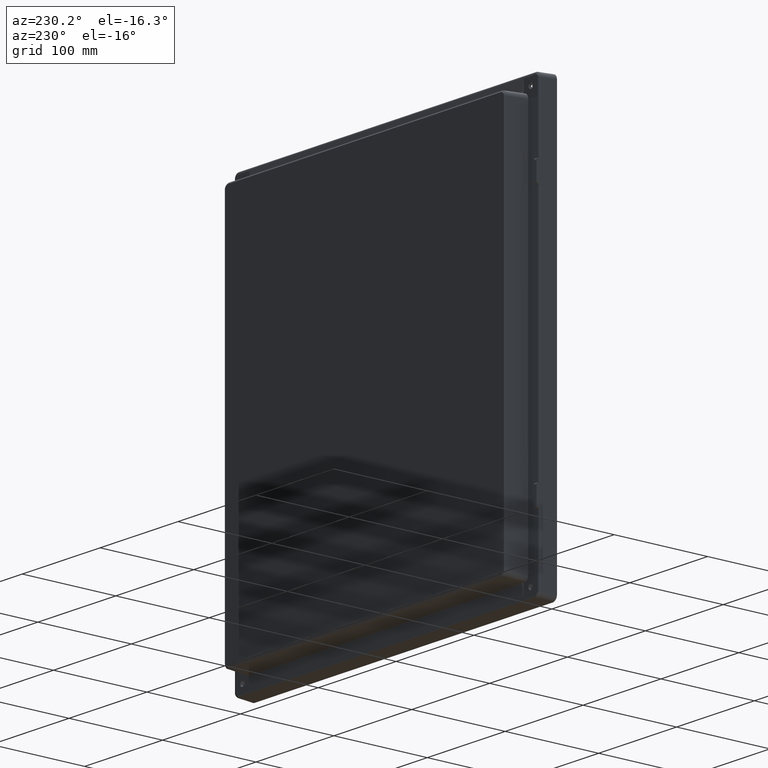
[diagram: clean part render]
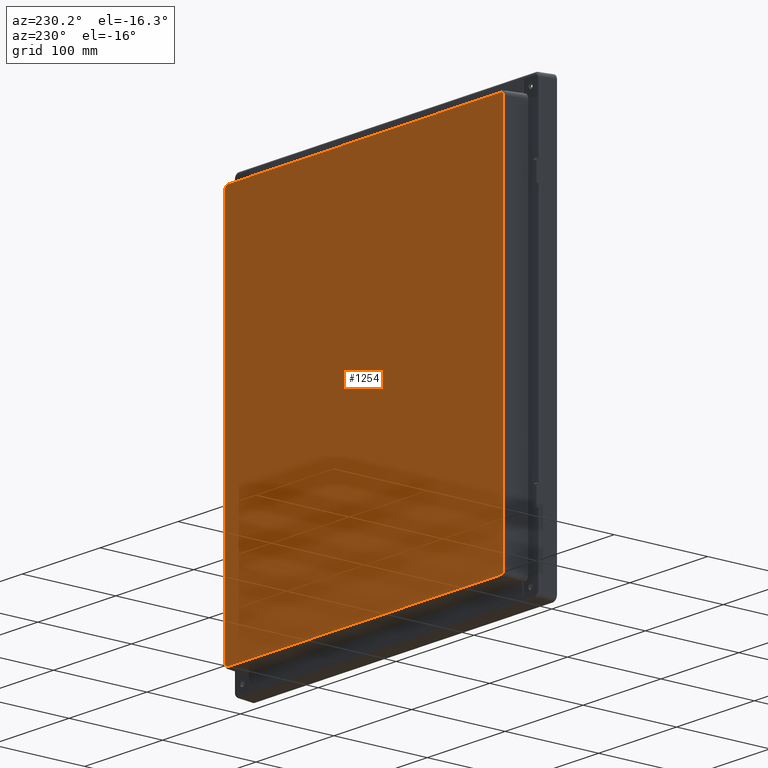
[diagram: same view with one face highlighted and labeled with its STEP entity id]
A machine part, auxiliary view. The second image highlights one B-rep face of the part: STEP entity #1254.
In plain terms, the highlighted planar face has unit normal (0, 1, 0).
Its self-contained STEP definition (entity closure, byte-faithful):
#996 = VECTOR ( 'NONE', #9577, 1000.000000000000000 ) ;
#1254 = ADVANCED_FACE ( 'NONE', ( #7381 ), #26122, .T. ) ;
#1315 = CARTESIAN_POINT ( 'NONE',  ( 179.1330037502764000, 34.00000000000000000, 202.8041769975908700 ) ) ;
#1467 = VERTEX_POINT ( 'NONE', #1315 ) ;
#1657 = CARTESIAN_POINT ( 'NONE',  ( 177.6569440720461200, 34.00000000000000000, -205.8675752404013200 ) ) ;
#1715 = EDGE_CURVE ( 'NONE', #8702, #29280, #11071, .T. ) ;
#1976 = CARTESIAN_POINT ( 'NONE',  ( 175.3041769975909900, 34.00000000000000000, 206.6330037502763200 ) ) ;
#2034 = ORIENTED_EDGE ( 'NONE', *, *, #3938, .T. ) ;
#2385 = CARTESIAN_POINT ( 'NONE',  ( 178.6431251170168900, 34.00000000000000700, 204.7435897431095100 ) ) ;
#2615 = ORIENTED_EDGE ( 'NONE', *, *, #5556, .T. ) ;
#2761 = ORIENTED_EDGE ( 'NONE', *, *, #8643, .T. ) ;
#3313 = ORIENTED_EDGE ( 'NONE', *, *, #1715, .T. ) ;
#3455 = CARTESIAN_POINT ( 'NONE',  ( -179.1339308130039900, 34.00000000000000000, 203.0548802001824200 ) ) ;
#3585 = LINE ( 'NONE', #21600, #996 ) ;
#3886 = CARTESIAN_POINT ( 'NONE',  ( -179.1330037502763200, 34.00000000000000000, 202.7256730632263400 ) ) ;
#3938 = EDGE_CURVE ( 'NONE', #20240, #1467, #11385, .T. ) ;
#4229 = ORIENTED_EDGE ( 'NONE', *, *, #9356, .T. ) ;
#4333 = CARTESIAN_POINT ( 'NONE',  ( 179.0123885963521100, 33.99999999999999300, -203.7905390636356600 ) ) ;
#4358 = CARTESIAN_POINT ( 'NONE',  ( 176.2905390636747700, 34.00000000000000000, 206.5123885963522200 ) ) ;
#4561 = CARTESIAN_POINT ( 'NONE',  ( 176.5324585220714900, 34.00000000000000700, 206.4382708566651600 ) ) ;
#4761 = CARTESIAN_POINT ( 'NONE',  ( 179.0372547930608100, 34.00000000000001400, 203.7942391106155900 ) ) ;
#5294 = CARTESIAN_POINT ( 'NONE',  ( -177.2418262364443300, 34.00000000000000700, -206.1440281517980100 ) ) ;
#5488 = VECTOR ( 'NONE', #16437, 1000.000000000000000 ) ;
#5556 = EDGE_CURVE ( 'NONE', #12538, #22856, #27057, .T. ) ;
#5605 = CARTESIAN_POINT ( 'NONE',  ( -179.1330037502763200, 34.00000000000000000, 202.8041769975908400 ) ) ;
#5919 = CARTESIAN_POINT ( 'NONE',  ( -178.9382708566774300, 34.00000000000000000, 204.0324585220415900 ) ) ;
#6027 = CARTESIAN_POINT ( 'NONE',  ( 179.1330037502763400, 34.00000000000000000, -202.8041769975908200 ) ) ;
#6076 = CARTESIAN_POINT ( 'NONE',  ( 175.3041769975909900, 34.00000000000000000, 206.6330037502763200 ) ) ;
#6264 = B_SPLINE_CURVE_WITH_KNOTS ( 'NONE', 3,
 ( #5605, #3455, #13177, #22613, #5919, #8393, #24808, #17860, #25116, #20313, #20010, #29835 ),
 .UNSPECIFIED., .F., .F.,
 ( 4, 2, 2, 2, 2, 4 ),
 ( 0.0000000000000000000, 0.1250000000000000000, 0.2500000000000000000, 0.5000000000000000000, 0.7500000000000000000, 1.000000000000000000 ),
 .UNSPECIFIED. ) ;
#6719 = CARTESIAN_POINT ( 'NONE',  ( 179.1339308130040700, 34.00000000000000700, -203.0548802001563900 ) ) ;
#6745 = CARTESIAN_POINT ( 'NONE',  ( 177.2418262364448700, 34.00000000000000000, 206.1440281517860200 ) ) ;
#6951 = CARTESIAN_POINT ( 'NONE',  ( -182.5000000000000000, 34.00000000000000000, 210.0000000000000000 ) ) ;
#7381 = FACE_OUTER_BOUND ( 'NONE', #9203, .T. ) ;
#7394 = VECTOR ( 'NONE', #13081, 1000.000000000000000 ) ;
#7444 = CARTESIAN_POINT ( 'NONE',  ( -179.1330037502763200, 34.00000000000000000, 202.8041769975908400 ) ) ;
#8393 = CARTESIAN_POINT ( 'NONE',  ( -178.6440281517612600, 34.00000000000000700, 204.7418262365042900 ) ) ;
#8470 = CARTESIAN_POINT ( 'NONE',  ( -179.1330037502763700, 34.00000000000000000, -202.8041769975908700 ) ) ;
#8643 = EDGE_CURVE ( 'NONE', #1467, #24751, #3585, .T. ) ;
#8702 = VERTEX_POINT ( 'NONE', #9372 ) ;
#8986 = CARTESIAN_POINT ( 'NONE',  ( 179.1330037502764000, 34.00000000000000000, 202.8041769975908700 ) ) ;
#9203 = EDGE_LOOP ( 'NONE', ( #2615, #4229, #24265, #2034, #2761, #26151, #3313, #20436 ) ) ;
#9356 = EDGE_CURVE ( 'NONE', #22856, #21958, #6264, .T. ) ;
#9372 = CARTESIAN_POINT ( 'NONE',  ( 175.3041769975909300, 34.00000000000000000, -206.6330037502763400 ) ) ;
#9577 = DIRECTION ( 'NONE',  ( -1.321694076934710400E-016, 0.0000000000000000000, -1.000000000000000000 ) ) ;
#10272 = CARTESIAN_POINT ( 'NONE',  ( -178.6431251170168700, 34.00000000000000000, -204.7435897431260200 ) ) ;
#11071 = LINE ( 'NONE', #14339, #5488 ) ;
#11385 = B_SPLINE_CURVE_WITH_KNOTS ( 'NONE', 3,
 ( #1976, #18653, #28177, #4358, #4561, #6745, #13894, #23527, #2385, #4761, #26018, #8986 ),
 .UNSPECIFIED., .F., .F.,
 ( 4, 2, 2, 2, 2, 4 ),
 ( 0.0000000000000000000, 0.1249999999999953400, 0.2499999999999906700, 0.4999999999999937800, 0.7499999999999968900, 1.000000000000000000 ),
 .UNSPECIFIED. ) ;
#11920 = DIRECTION ( 'NONE',  ( 0.0000000000000000000, 1.000000000000000000, 0.0000000000000000000 ) ) ;
#12346 = CARTESIAN_POINT ( 'NONE',  ( -175.5548802001682100, 34.00000000000000000, -206.6339308130039900 ) ) ;
#12538 = VERTEX_POINT ( 'NONE', #8470 ) ;
#12793 = LINE ( 'NONE', #18534, #24284 ) ;
#13081 = DIRECTION ( 'NONE',  ( 1.321694076934710400E-016, 0.0000000000000000000, 1.000000000000000000 ) ) ;
#13177 = CARTESIAN_POINT ( 'NONE',  ( -179.1099931947648000, 34.00000000000000000, 203.3022932539175500 ) ) ;
#13368 = CARTESIAN_POINT ( 'NONE',  ( -175.3041769975909000, 34.00000000000000000, -206.6330037502762900 ) ) ;
#13612 = EDGE_CURVE ( 'NONE', #24751, #8702, #27440, .T. ) ;
#13894 = CARTESIAN_POINT ( 'NONE',  ( 177.6568282157775800, 34.00000000000000700, 205.8674593839567700 ) ) ;
#14339 = CARTESIAN_POINT ( 'NONE',  ( -175.2256730632265100, 34.00000000000000000, -206.6330037502762900 ) ) ;
#15975 = EDGE_CURVE ( 'NONE', #21958, #20240, #12793, .T. ) ;
#16265 = CARTESIAN_POINT ( 'NONE',  ( 178.6440281517901100, 34.00000000000001400, -204.7418262364869900 ) ) ;
#16437 = DIRECTION ( 'NONE',  ( -1.000000000000000000, 0.0000000000000000000, 0.0000000000000000000 ) ) ;
#17033 = CARTESIAN_POINT ( 'NONE',  ( -175.3041769975909000, 34.00000000000000000, -206.6330037502762900 ) ) ;
#17134 = CARTESIAN_POINT ( 'NONE',  ( -176.2905390636534000, 34.00000000000000000, -206.5123885963522200 ) ) ;
#17238 = CARTESIAN_POINT ( 'NONE',  ( -179.0372547930606700, 34.00000000000000700, -203.7942391105990500 ) ) ;
#17441 = CARTESIAN_POINT ( 'NONE',  ( -178.3675752403565900, 34.00000000000000700, -205.1569440721255000 ) ) ;
#17860 = CARTESIAN_POINT ( 'NONE',  ( -177.6569440720658700, 34.00000000000000700, 205.8675752403931100 ) ) ;
#18534 = CARTESIAN_POINT ( 'NONE',  ( 175.2256730632264500, 34.00000000000000000, 206.6330037502763200 ) ) ;
#18653 = CARTESIAN_POINT ( 'NONE',  ( 175.5548802001824800, 34.00000000000000000, 206.6339308130040400 ) ) ;
#18821 = B_SPLINE_CURVE_WITH_KNOTS ( 'NONE', 3,
 ( #17033, #12346, #28907, #17134, #26868, #5294, #19712, #17441, #10272, #17238, #19403, #29209 ),
 .UNSPECIFIED., .F., .F.,
 ( 4, 2, 2, 2, 2, 4 ),
 ( 0.0000000000000000000, 0.1250000000000000000, 0.2500000000000000000, 0.5000000000000000000, 0.7500000000000000000, 1.000000000000000000 ),
 .UNSPECIFIED. ) ;
#19403 = CARTESIAN_POINT ( 'NONE',  ( -179.1348593914731900, 34.00000000000000000, -203.3059933008418300 ) ) ;
#19712 = CARTESIAN_POINT ( 'NONE',  ( -177.6568282157574900, 34.00000000000000000, -205.8674593839883500 ) ) ;
#20010 = CARTESIAN_POINT ( 'NONE',  ( -175.8059933008134100, 34.00000000000000000, 206.6348593914730700 ) ) ;
#20240 = VERTEX_POINT ( 'NONE', #6076 ) ;
#20313 = CARTESIAN_POINT ( 'NONE',  ( -176.2942391105706600, 34.00000000000000700, 206.5372547930605300 ) ) ;
#20436 = ORIENTED_EDGE ( 'NONE', *, *, #24587, .T. ) ;
#20887 = CARTESIAN_POINT ( 'NONE',  ( 175.8059933008133800, 33.99999999999998600, -206.6348593914729900 ) ) ;
#21600 = CARTESIAN_POINT ( 'NONE',  ( 179.1330037502763400, 34.00000000000000000, -202.7256730632264200 ) ) ;
#21958 = VERTEX_POINT ( 'NONE', #24966 ) ;
#22613 = CARTESIAN_POINT ( 'NONE',  ( -179.0123885963521700, 34.00000000000000000, 203.7905390636746900 ) ) ;
#22856 = VERTEX_POINT ( 'NONE', #7444 ) ;
#23291 = CARTESIAN_POINT ( 'NONE',  ( 175.3041769975909300, 34.00000000000000000, -206.6330037502763400 ) ) ;
#23527 = CARTESIAN_POINT ( 'NONE',  ( 178.3675752403366100, 34.00000000000000700, 205.1569440721572200 ) ) ;
#24265 = ORIENTED_EDGE ( 'NONE', *, *, #15975, .T. ) ;
#24284 = VECTOR ( 'NONE', #30607, 1000.000000000000000 ) ;
#24587 = EDGE_CURVE ( 'NONE', #29280, #12538, #18821, .T. ) ;
#24751 = VERTEX_POINT ( 'NONE', #6027 ) ;
#24808 = CARTESIAN_POINT ( 'NONE',  ( -178.3674593840481500, 34.00000000000000000, 205.1568282157207900 ) ) ;
#24966 = CARTESIAN_POINT ( 'NONE',  ( -175.3041769975908700, 34.00000000000000000, 206.6330037502763400 ) ) ;
#25116 = CARTESIAN_POINT ( 'NONE',  ( -177.2435897431544700, 34.00000000000000000, 206.1431251170168400 ) ) ;
#25291 = CARTESIAN_POINT ( 'NONE',  ( 179.1099931947646800, 34.00000000000000000, -203.3022932538785900 ) ) ;
#25483 = CARTESIAN_POINT ( 'NONE',  ( 178.9382708566631700, 34.00000000000000000, -204.0324585220502100 ) ) ;
#26018 = CARTESIAN_POINT ( 'NONE',  ( 179.1348593914733800, 34.00000000000000700, 203.3059933008584000 ) ) ;
#26122 = PLANE ( 'NONE',  #29874 ) ;
#26151 = ORIENTED_EDGE ( 'NONE', *, *, #13612, .T. ) ;
#26868 = CARTESIAN_POINT ( 'NONE',  ( -176.5324585220716900, 34.00000000000000000, -206.4382708566591000 ) ) ;
#27057 = LINE ( 'NONE', #3886, #7394 ) ;
#27440 = B_SPLINE_CURVE_WITH_KNOTS ( 'NONE', 3,
 ( #30305, #6719, #25291, #4333, #25483, #16265, #27756, #1657, #27665, #27851, #20887, #23291 ),
 .UNSPECIFIED., .F., .F.,
 ( 4, 2, 2, 2, 2, 4 ),
 ( 0.0000000000000000000, 0.1250000000000027500, 0.2500000000000055000, 0.5000000000000036600, 0.7500000000000017800, 1.000000000000000000 ),
 .UNSPECIFIED. ) ;
#27665 = CARTESIAN_POINT ( 'NONE',  ( 177.2435897431545900, 34.00000000000000700, -206.1431251170168400 ) ) ;
#27756 = CARTESIAN_POINT ( 'NONE',  ( 178.3674593840680100, 33.99999999999999300, -205.1568282157125200 ) ) ;
#27851 = CARTESIAN_POINT ( 'NONE',  ( 176.2942391105706600, 34.00000000000000000, -206.5372547930605000 ) ) ;
#28177 = CARTESIAN_POINT ( 'NONE',  ( 175.8022932539175800, 33.99999999999999300, 206.6099931947646600 ) ) ;
#28486 = DIRECTION ( 'NONE',  ( 0.0000000000000000000, -0.0000000000000000000, 1.000000000000000000 ) ) ;
#28907 = CARTESIAN_POINT ( 'NONE',  ( -175.8022932538962400, 34.00000000000000000, -206.6099931947647700 ) ) ;
#29209 = CARTESIAN_POINT ( 'NONE',  ( -179.1330037502763700, 34.00000000000000000, -202.8041769975908700 ) ) ;
#29280 = VERTEX_POINT ( 'NONE', #13368 ) ;
#29835 = CARTESIAN_POINT ( 'NONE',  ( -175.3041769975908700, 34.00000000000000000, 206.6330037502763400 ) ) ;
#29874 = AXIS2_PLACEMENT_3D ( 'NONE', #6951, #11920, #28486 ) ;
#30305 = CARTESIAN_POINT ( 'NONE',  ( 179.1330037502763400, 34.00000000000000000, -202.8041769975908200 ) ) ;
#30607 = DIRECTION ( 'NONE',  ( 1.000000000000000000, 0.0000000000000000000, 0.0000000000000000000 ) ) ;